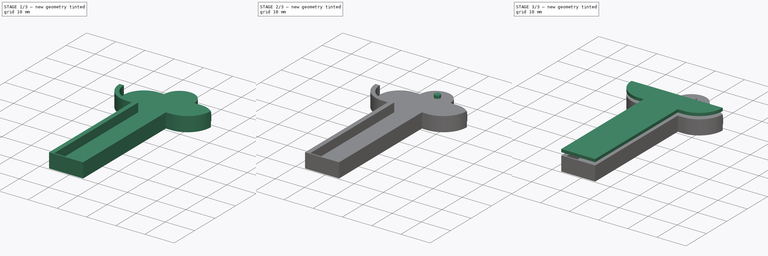
[diagram: build sequence overview — one tinted view per stage of 3, left to right]
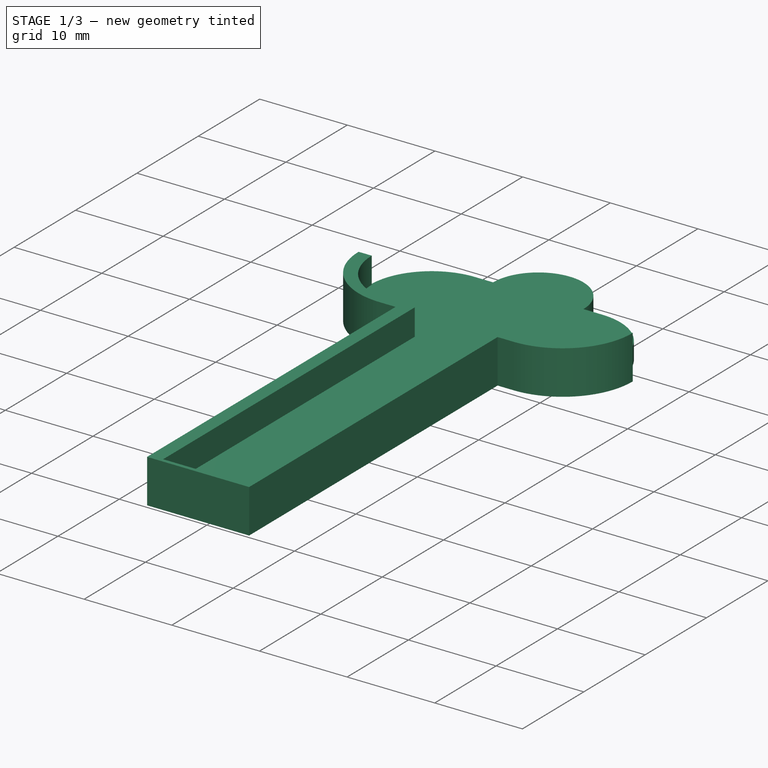
[diagram: stage 1 of 3 — iso view after this stage's code; geometry added in this stage tinted green]
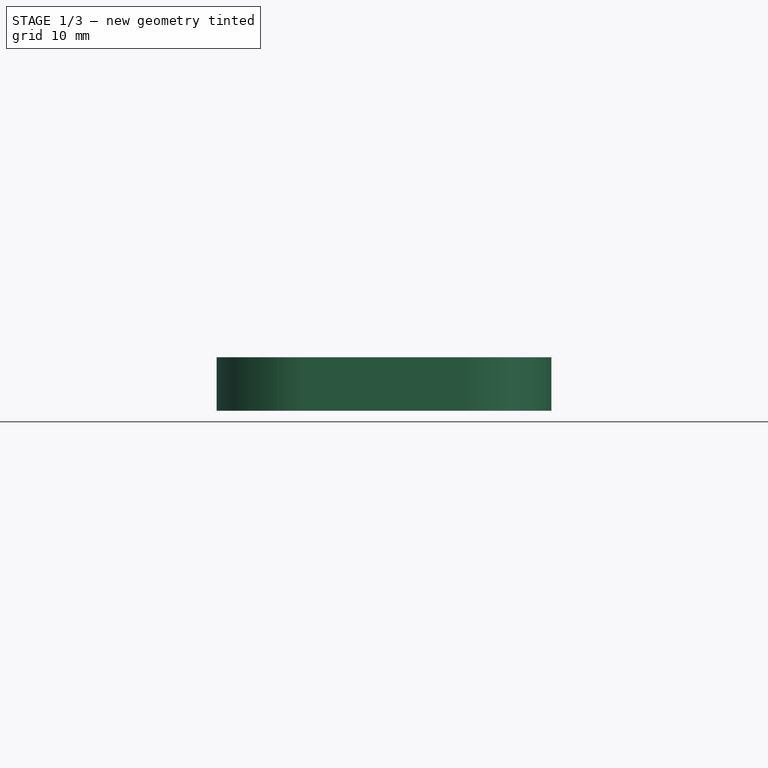
[diagram: stage 1 of 3 — front view after this stage's code; geometry added in this stage tinted green]
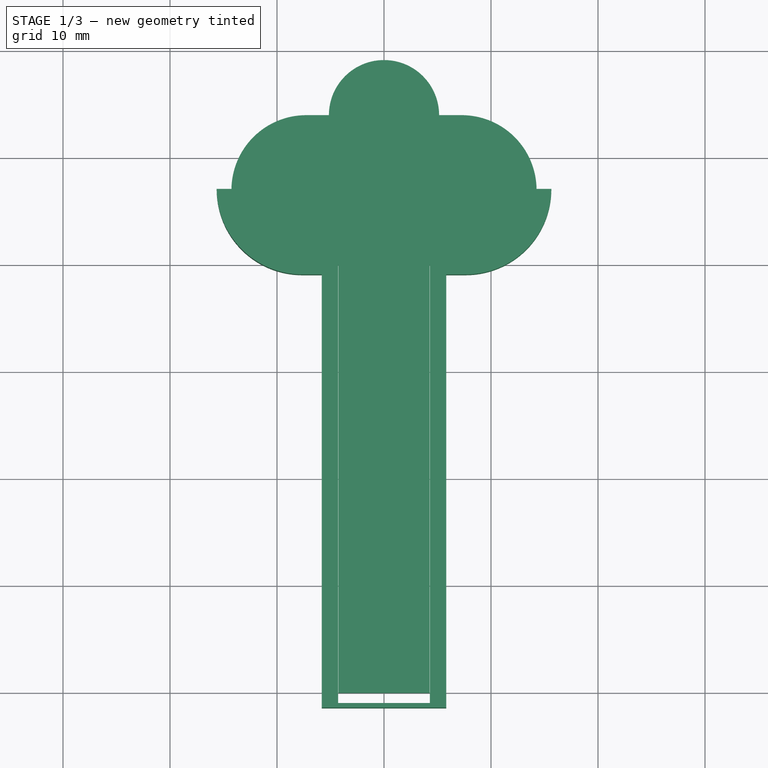
[diagram: stage 1 of 3 — top view after this stage's code; geometry added in this stage tinted green]
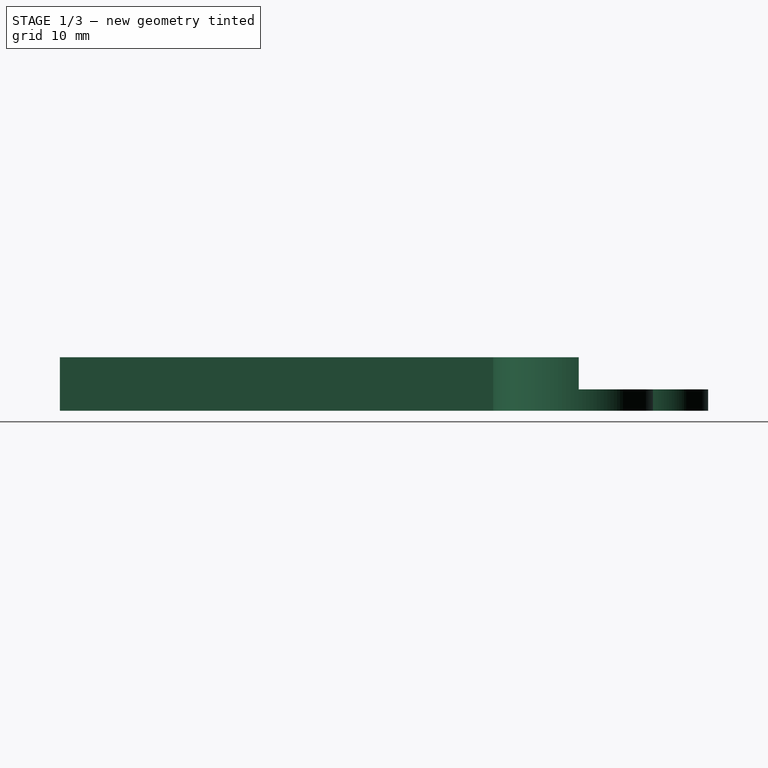
[diagram: stage 1 of 3 — right view after this stage's code; geometry added in this stage tinted green]
FCSTD DOCUMENT  (FreeCAD 0.20R29410 (Git))
Label: Key_Holder_ID_Badge
License: All rights reserved
LicenseURL: http://en.wikipedia.org/wiki/All_rights_reserved
objects: Sketcher::SketchObject×4, PartDesign::Pad×4, PartDesign::Body×2, App::Part×2, PartDesign::Fillet×1
note: 16 computed .brp shape members not serialized (recipe doc carries the construction recipe); baked Part::Feature solids carry a one-line shape summary decoded from their .brp

FEATURE [Sketcher::SketchObject] Sketch  label="Sketch_Back"
  FullyConstrained = true
  MapMode = 5
  Support = -> [XY_Plane001]
  sketch-geometry (10):
    g0: LineSegment StartX=-4.26 StartY=0 StartZ=0 EndX=-4.26 EndY=-40 EndZ=0
    g1: LineSegment StartX=-4.26 StartY=-40 StartZ=0 EndX=4.26 EndY=-40 EndZ=0
    g2: LineSegment StartX=4.26 StartY=-40 StartZ=0 EndX=4.26 EndY=0 EndZ=0
    g3: LineSegment StartX=4.26 StartY=0 StartZ=0 EndX=7.26 EndY=0 EndZ=0
    g4: LineSegment StartX=-4.26 StartY=0 StartZ=0 EndX=-7.26 EndY=0 EndZ=0
    g5: LineSegment StartX=-7.26003 StartY=14 StartZ=0 EndX=-5.15 EndY=14 EndZ=0
    g6: LineSegment StartX=7.26002 StartY=14 StartZ=0 EndX=5.15 EndY=14 EndZ=0
    g7: ArcOfCircle CenterX=-7.26 CenterY=7 CenterZ=0 NormalX=0 NormalY=0 NormalZ=1 AngleXU=0 Radius=7 StartAngle=1.5708 EndAngle=4.71239
    g8: ArcOfCircle CenterX=7.26 CenterY=7 CenterZ=0 NormalX=0 NormalY=0 NormalZ=1 AngleXU=0 Radius=7 StartAngle=4.71239 EndAngle=7.85398
    g9: ArcOfCircle CenterX=-1e-16 CenterY=14 CenterZ=0 NormalX=0 NormalY=0 NormalZ=1 AngleXU=0 Radius=5.15 StartAngle=0 EndAngle=3.14159
  constraints (28):
    c: PointOnObject(g0,g-1)
    c: Vertical(g0)
    c: Coincident(g0,g1)
    c: Coincident(g1,g2)
    c: Vertical(g2)
    c: Coincident(g2,g3)
    c: PointOnObject(g3,g-1)
    c: Coincident(g0,g4)
    c: PointOnObject(g4,g-1)
    c: Horizontal(g5)
    c: Horizontal(g6)
    c: Tangent(g4,g7) = 1.5708
    c: Coincident(g7,g5)
    c: Tangent(g3,g8) = -1.5708
    c: Coincident(g8,g6)
    c: Perpendicular(g5,g9) = 4.71239
    c: Coincident(g9,g6)
    c: DistanceX(g0,g1) = 8.52
    c: Horizontal(g1)
    c: Symmetric(g2,g0,g-2)
    c: DistanceX(g5,g6) = 10.3
    c: DistanceY(g2,g2) = 40
    c: DistanceY(g0,g5) = 14
    c: Symmetric(g6,g5,g-2)
    c: Equal(g8,g7)
    c: Equal(g4,g3)
    c: DistanceX(g3,g3) = 3
    c: Radius(g8) = 7
FEATURE [Sketcher::SketchObject] Sketch001  label="Sketch_Wall"
  FullyConstrained = true
  MapMode = 5
  Support = -> [XY_Plane001]
  sketch-geometry (16):
    g0: ArcOfCircle CenterX=-7.64 CenterY=7.06 CenterZ=0 NormalX=0 NormalY=0 NormalZ=1 AngleXU=0 Radius=8 StartAngle=3.14159 EndAngle=4.71239
    g1: LineSegment StartX=-7.64 StartY=-0.94 StartZ=0 EndX=-5.82 EndY=-0.94 EndZ=0
    g2: LineSegment StartX=-5.82 StartY=-0.94 StartZ=0 EndX=-5.82 EndY=-41.43 EndZ=0
    g3: LineSegment StartX=-5.82 StartY=-41.43 StartZ=0 EndX=5.82 EndY=-41.43 EndZ=0
    g4: LineSegment StartX=5.82 StartY=-41.43 StartZ=0 EndX=5.82 EndY=-0.94 EndZ=0
    g5: LineSegment StartX=5.82 StartY=-0.94 StartZ=0 EndX=7.64 EndY=-0.94 EndZ=0
    g6: ArcOfCircle CenterX=7.64 CenterY=7.06 CenterZ=0 NormalX=0 NormalY=0 NormalZ=1 AngleXU=0 Radius=8 StartAngle=4.71239 EndAngle=6.28319
    g7: LineSegment StartX=-15.64 StartY=7.06 StartZ=0 EndX=-14.14 EndY=7.06 EndZ=0
    g8: ArcOfCircle CenterX=-7.08 CenterY=7.06 CenterZ=0 NormalX=0 NormalY=0 NormalZ=1 AngleXU=0 Radius=7.06 StartAngle=3.14159 EndAngle=4.71239
    g9: LineSegment StartX=-7.08 StartY=0 StartZ=0 EndX=-4.29 EndY=0 EndZ=0
    g10: LineSegment StartX=-4.29 StartY=0 StartZ=0 EndX=-4.29 EndY=-41 EndZ=0
    g11: LineSegment StartX=-4.29 StartY=-41 StartZ=0 EndX=4.29 EndY=-41 EndZ=0
    g12: LineSegment StartX=4.29 StartY=-41 StartZ=0 EndX=4.29 EndY=0 EndZ=0
    g13: LineSegment StartX=4.29 StartY=0 StartZ=0 EndX=7.08 EndY=0 EndZ=0
    g14: ArcOfCircle CenterX=7.08 CenterY=7.06 CenterZ=0 NormalX=0 NormalY=0 NormalZ=1 AngleXU=0 Radius=7.06 StartAngle=4.71239 EndAngle=6.28319
    g15: LineSegment StartX=14.14 StartY=7.06 StartZ=0 EndX=15.64 EndY=7.06 EndZ=0
  constraints (45):
    c: Tangent(g0,g1) = -1.5708
    c: Coincident(g1,g2)
    c: Vertical(g2)
    c: Coincident(g2,g3)
    c: Coincident(g3,g4)
    c: Vertical(g4)
    c: Coincident(g4,g5)
    c: Horizontal(g5)
    c: Tangent(g5,g6) = -1.5708
    c: Horizontal(g1)
    c: Horizontal(g1,g4)
    c: Symmetric(g2,g3,g-2)
    c: Radius(g6) = 8
    c: DistanceX(g3,g3) = 11.64
    c: DistanceY(g4,g4) = 40.49
    c: DistanceX(g0,g-1) = 7.64
    c: DistanceY(g-1,g6) = 7.06
    c: Symmetric(g6,g0,g-2)
    c: DistanceX(g0,g6) = 31.28
    c: Coincident(g0,g7)
    c: Perpendicular(g7,g8) = 4.71239
    c: PointOnObject(g8,g-1)
    c: Coincident(g8,g9)
    c: PointOnObject(g9,g-1)
    c: Coincident(g9,g10)
    c: Vertical(g10)
    c: Coincident(g10,g11)
    c: Horizontal(g11)
    c: Coincident(g11,g12)
    c: Vertical(g12)
    c: Coincident(g12,g13)
    c: PointOnObject(g13,g-1)
    c: Tangent(g13,g14) = -1.5708
    c: Coincident(g15,g14)
    c: Coincident(g15,g6)
    c: Horizontal(g15)
    c: Horizontal(g7)
    c: Equal(g8,g14)
    c: Radius(g14) = 7.06
    c: Symmetric(g9,g12,g-2)
    c: Equal(g9,g13)
    c: DistanceX(g13,g13) = 2.79
    c: Equal(g15,g7)
    c: DistanceX(g15,g15) = 1.5
    c: DistanceY(g12,g12) = 41
FEATURE [PartDesign::Pad] Pad  label="Pad_Wall"
  Direction = (0,0,1)
  Length = 5
  Length2 = 10
  Profile = -> Sketch001
  ReferenceAxis = -> Sketch001 [N_Axis]
  Type = 0
FEATURE [PartDesign::Pad] Pad001  label="Pad_Back"
  BaseFeature = -> Pad
  Direction = (0,0,1)
  Length = 2
  Length2 = 10
  Profile = -> Sketch
  ReferenceAxis = -> Sketch [N_Axis]
  Type = 0
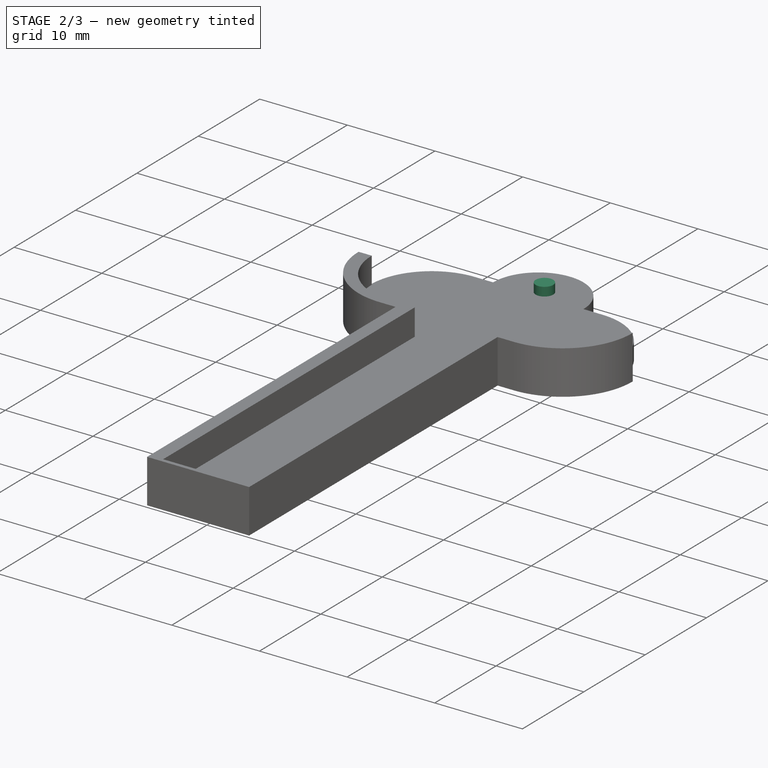
[diagram: stage 2 of 3 — iso view after this stage's code; geometry added in this stage tinted green]
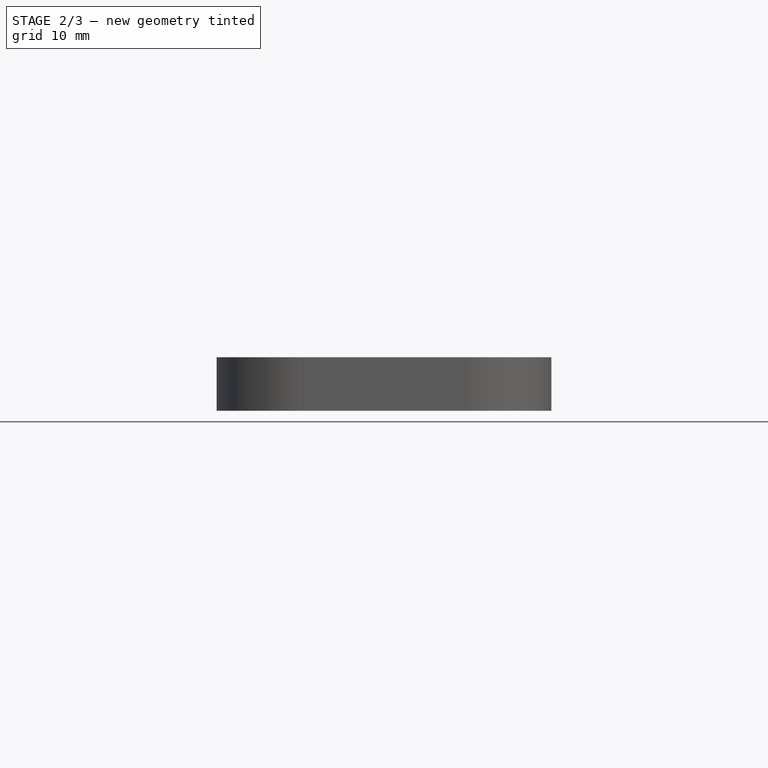
[diagram: stage 2 of 3 — front view after this stage's code; geometry added in this stage tinted green]
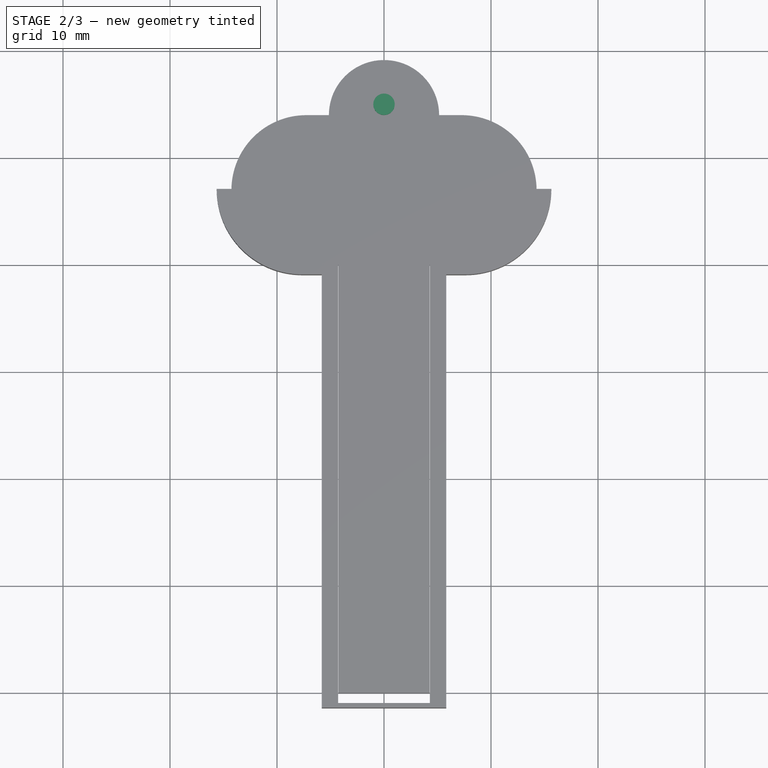
[diagram: stage 2 of 3 — top view after this stage's code; geometry added in this stage tinted green]
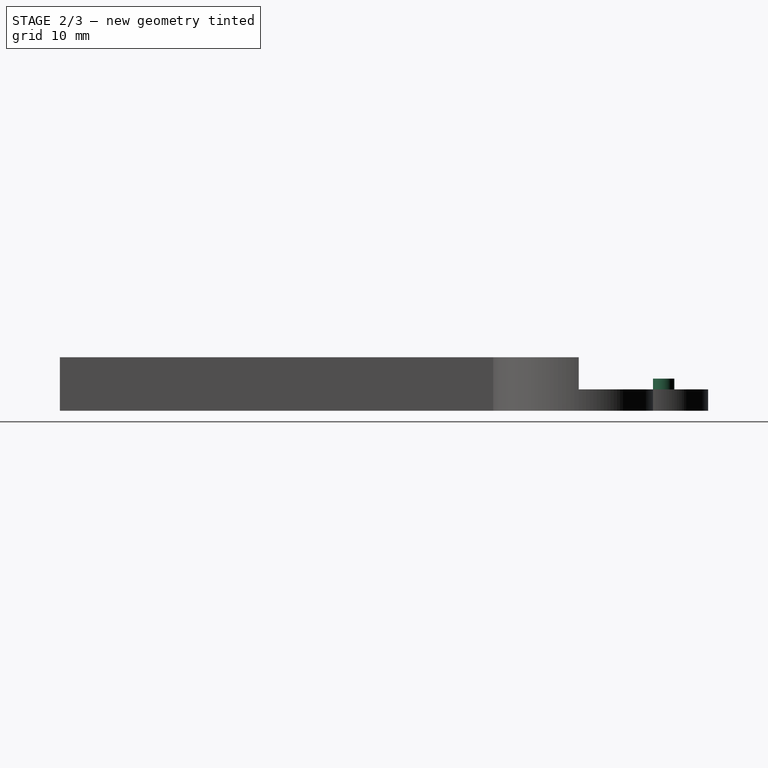
[diagram: stage 2 of 3 — right view after this stage's code; geometry added in this stage tinted green]
FEATURE [PartDesign::Body] Body001  label="Body_Top"
  Group = -> [Sketch005,Pad002]
  Origin = -> Origin002
  Tip = -> Pad002
FEATURE [App::Part] Part001
  Group = -> [Body001]
  Origin = -> Origin003
FEATURE [PartDesign::Pad] Pad003
  BaseFeature = -> Pad001
  Direction = (0,0,1)
  Length = 2
  Length2 = 10
  Profile = -> Sketch003
  ReferenceAxis = -> Sketch003 [N_Axis]
  Type = 0
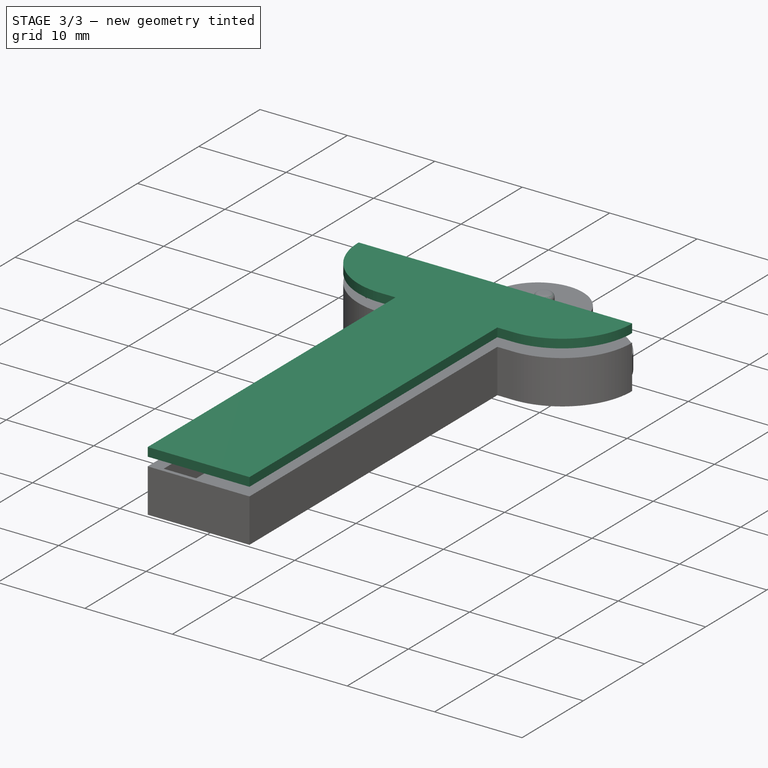
[diagram: stage 3 of 3 — iso view after this stage's code; geometry added in this stage tinted green]
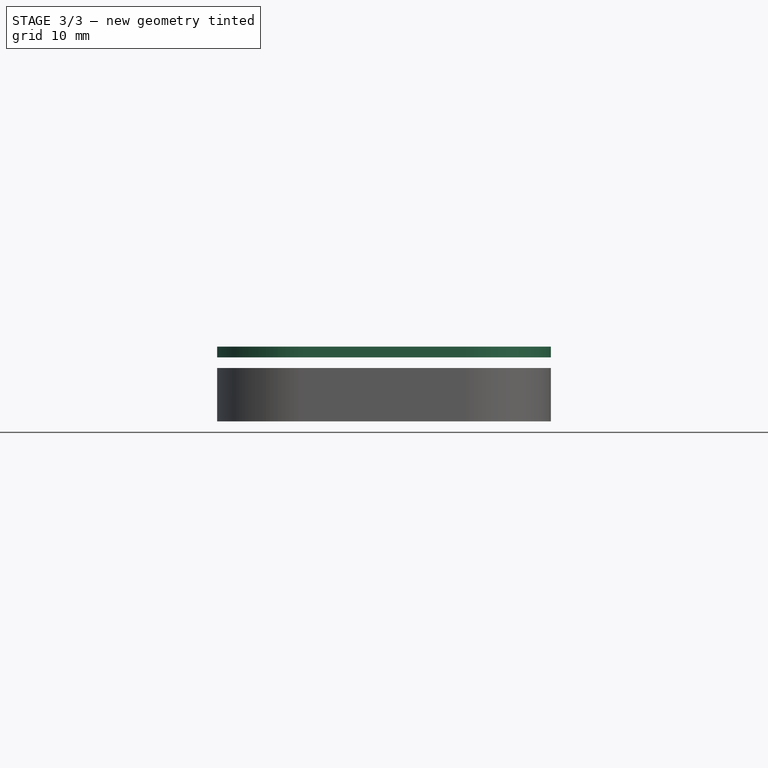
[diagram: stage 3 of 3 — front view after this stage's code; geometry added in this stage tinted green]
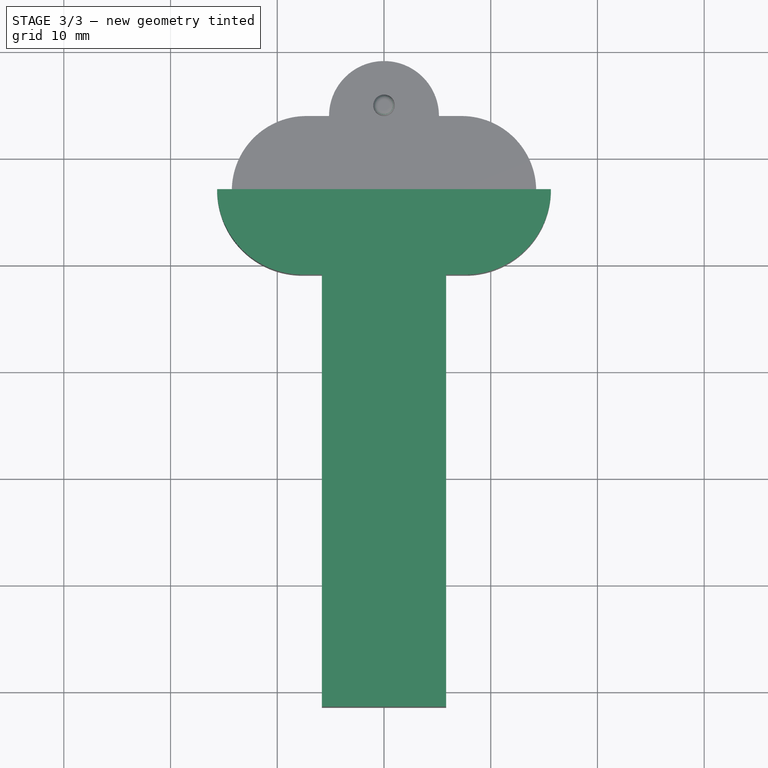
[diagram: stage 3 of 3 — top view after this stage's code; geometry added in this stage tinted green]
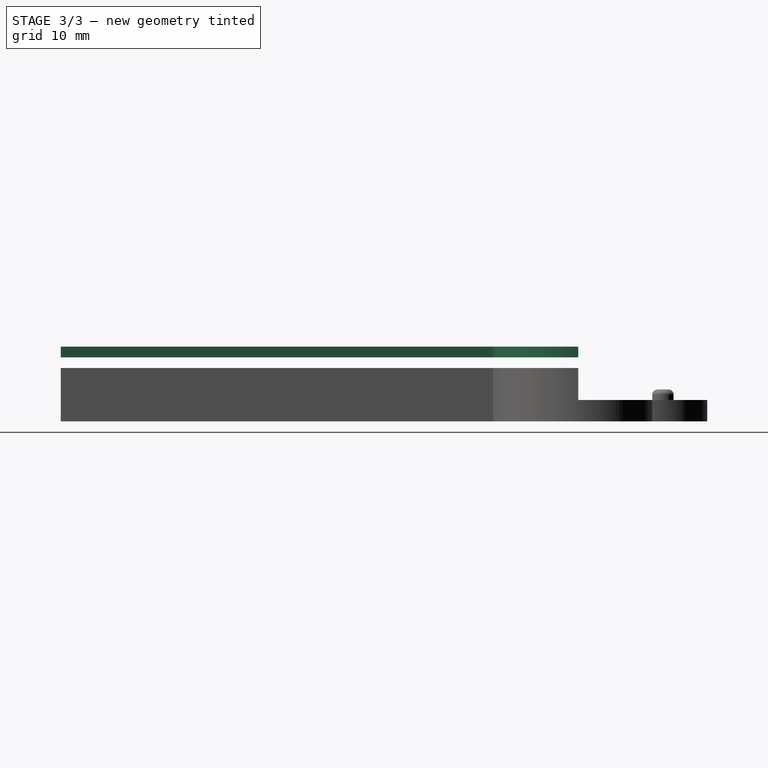
[diagram: stage 3 of 3 — right view after this stage's code; geometry added in this stage tinted green]
FEATURE [Sketcher::SketchObject] Sketch003  label="Sketch_Mag_Hole"
  AttachmentOffset = pos=(0,0,1) rot=(0,0,1;0rad)
  FullyConstrained = true
  MapMode = 5
  Placement = pos=(0,0,1) rot=(0,0,1;0rad)
  Support = -> [XY_Plane001]
  sketch-geometry (1):
    g0: Circle CenterX=0 CenterY=15 CenterZ=0 NormalX=0 NormalY=0 NormalZ=1 AngleXU=0 Radius=1
  constraints (3):
    c: PointOnObject(g0,g-2)
    c: Diameter(g0) = 2
    c: DistanceY(g-1,g0) = 15
FEATURE [Sketcher::SketchObject] Sketch005  label="Sketch_Top"
  AttachmentOffset = pos=(0,0,6) rot=(0,0,1;0rad)
  FullyConstrained = false
  MapMode = 5
  Placement = pos=(0,0,6) rot=(0,0,1;0rad)
  Support = -> [XY_Plane002]
  sketch-geometry (8):
    g0: LineSegment StartX=-15.64 StartY=7.06 StartZ=0 EndX=15.64 EndY=7.06 EndZ=0
    g1: ArcOfCircle CenterX=7.64 CenterY=7.06 CenterZ=0 NormalX=0 NormalY=0 NormalZ=1 AngleXU=0 Radius=8 StartAngle=4.71239 EndAngle=6.28319
    g2: LineSegment StartX=7.64 StartY=-0.94 StartZ=0 EndX=5.82 EndY=-0.94 EndZ=0
    g3: LineSegment StartX=5.82 StartY=-0.94 StartZ=0 EndX=5.82 EndY=-41.43 EndZ=0
    g4: LineSegment StartX=5.82 StartY=-41.43 StartZ=0 EndX=-5.82 EndY=-41.43 EndZ=0
    g5: LineSegment StartX=-5.82 StartY=-41.43 StartZ=0 EndX=-5.82 EndY=-0.94 EndZ=0
    g6: LineSegment StartX=-5.82 StartY=-0.94 StartZ=0 EndX=-7.64 EndY=-0.94 EndZ=0
    g7: ArcOfCircle CenterX=-7.64 CenterY=7.06 CenterZ=0 NormalX=0 NormalY=0 NormalZ=1 AngleXU=0 Radius=8 StartAngle=3.14159 EndAngle=4.71239
  constraints (9):
    c: Perpendicular(g0,g1) = 1.5708
    c: Tangent(g1,g2) = 1.5708
    c: Coincident(g2,g3)
    c: Vertical(g3)
    c: Coincident(g3,g4)
    c: Coincident(g4,g5)
    c: Coincident(g5,g6)
    c: Tangent(g6,g7) = 1.5708
    c: Coincident(g7,g0)
FEATURE [PartDesign::Pad] Pad002
  Direction = (0,0,1)
  Length = 1
  Length2 = 10
  Profile = -> Sketch005
  ReferenceAxis = -> Sketch005 [N_Axis]
  Type = 0
FEATURE [PartDesign::Fillet] Fillet
  Base = -> Pad003 [Edge95]
  BaseFeature = -> Pad003
  Radius = 0.5
  SupportTransform = false
  UseAllEdges = false
FEATURE [PartDesign::Body] Body  label="Body_Key_Holder_ID_Badge"
  Group = -> [Sketch,Sketch001,Pad,Pad001,Sketch003,Pad003,Fillet]
  Origin = -> Origin001
  Tip = -> Fillet
FEATURE [App::Part] Part  label="Part_Key_Holder_ID_Badge"
  Group = -> [Body]
  Origin = -> Origin
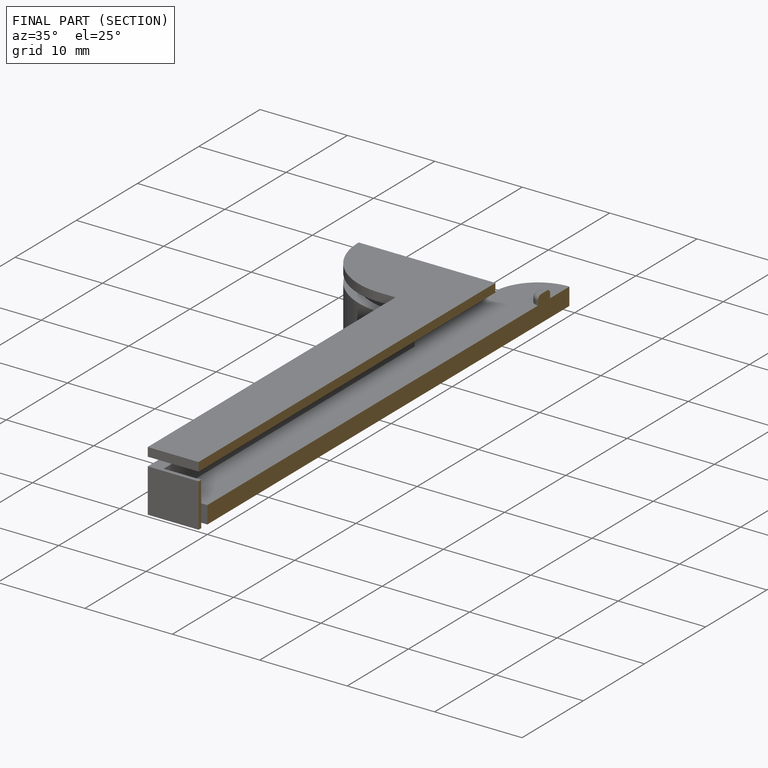
[diagram: finished part — half-section view (interior)]
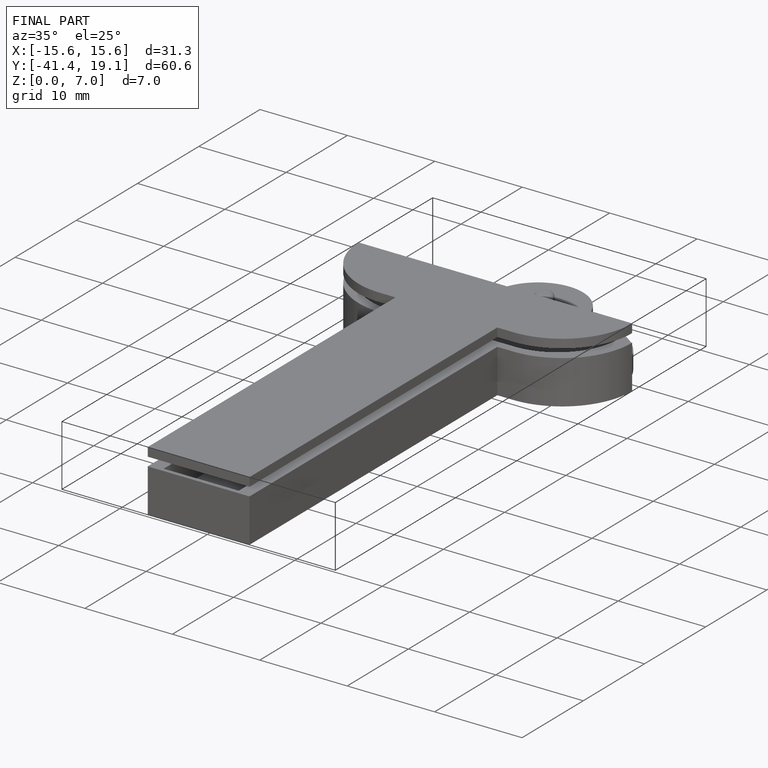
[diagram: finished part — iso view with bounding-box wireframe]
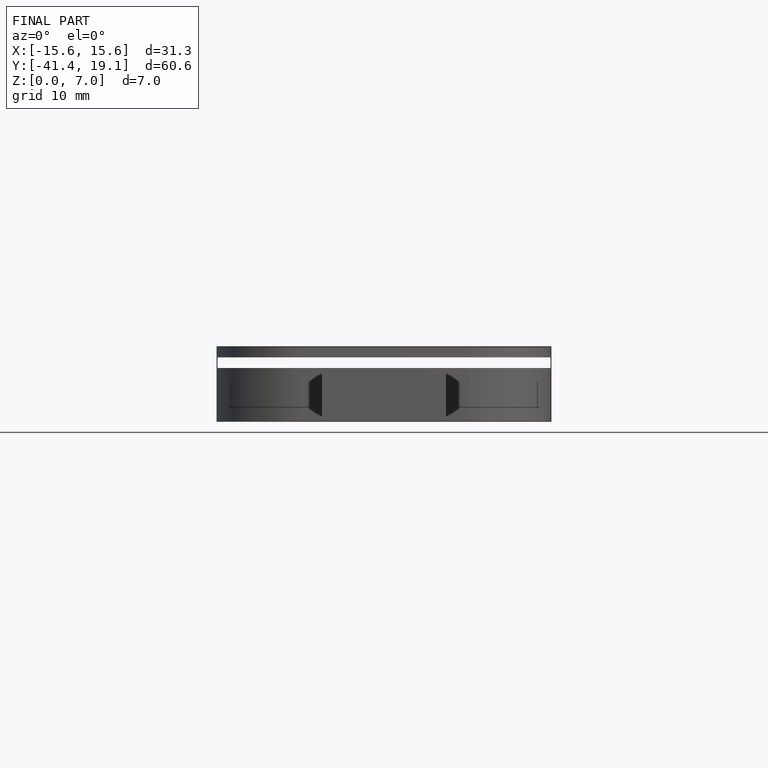
[diagram: finished part — front view with bounding-box wireframe]
